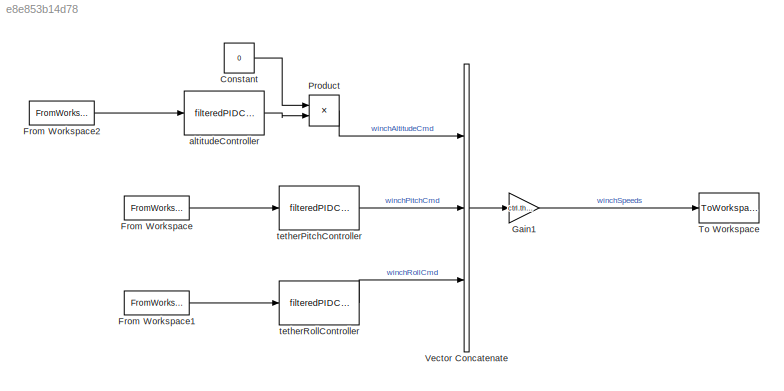
MODEL slx_e8e853b14d78
KIND model
CONFIG AbsTol = auto
CONFIG EnableMultiTasking = off
CONFIG FixedStep = auto
CONFIG MaxStep = auto
CONFIG MinStep = auto
CONFIG RelTol = 1e-3
CONFIG SampleTimeConstraint = Unconstrained
CONFIG Solver = VariableStepAuto
CONFIG SolverName = VariableStepAuto
CONFIG StartTime = 0.0
CONFIG StopTime = timeExp(end)
BLOCK [Constant] Constant
  Value = 0
BLOCK [FromWorkspace] From Workspace
  SampleTime = 0
  VariableName = pitchErrorWs
  ZeroCross = on
BLOCK [FromWorkspace] From Workspace1
  SampleTime = 0
  VariableName = rollErrorWs
  ZeroCross = on
BLOCK [FromWorkspace] From Workspace2
  SampleTime = 0
  VariableName = altiErrorWs
  ZeroCross = on
BLOCK [Gain] Gain1
  Gain = ctrl.thrAllocationMat.Value
  Multiplication = Matrix(K*u)
  OutDataTypeStr = Inherit: Inherit via internal rule
  ParamDataTypeStr = Inherit: Inherit via internal rule
  SaturateOnIntegerOverflow = off
BLOCK [Product] Product
  InputSameDT = off
  OutDataTypeStr = Inherit: Inherit via internal rule
  Ports = [2, 1]
  RndMeth = Floor
  SaturateOnIntegerOverflow = off
BLOCK [ToWorkspace] To Workspace
  FixptAsFi = on
  MaxDataPoints = inf
  Ports = [1]
  SampleTime = -1
  Save2DSignal = 3-D array (concatenate along third dimension)
  SaveFormat = Timeseries
  VariableName = tempSol
BLOCK [Concatenate] Vector Concatenate
  NumInputs = 3
  Ports = [3, 1]
BLOCK [Reference] altitudeController  REF=filteredPIDController_ul/filteredPIDController
  Ports = [1, 1]
  SourceBlock = filteredPIDController_ul/filteredPIDController
BLOCK [Reference] tetherPitchController  REF=filteredPIDController_ul/filteredPIDController
  Ports = [1, 1]
  SourceBlock = filteredPIDController_ul/filteredPIDController
BLOCK [Reference] tetherRollController  REF=filteredPIDController_ul/filteredPIDController
  Ports = [1, 1]
  SourceBlock = filteredPIDController_ul/filteredPIDController
LINE Constant:1 -> Product:1
LINE From Workspace1:1 -> tetherRollController:1
LINE From Workspace2:1 -> altitudeController:1
LINE From Workspace:1 -> tetherPitchController:1
LINE Gain1:1 -> To Workspace:1
LINE Product:1 -> Vector Concatenate:1
LINE Vector Concatenate:1 -> Gain1:1
LINE altitudeController:1 -> Product:2
LINE tetherPitchController:1 -> Vector Concatenate:2
LINE tetherRollController:1 -> Vector Concatenate:3
